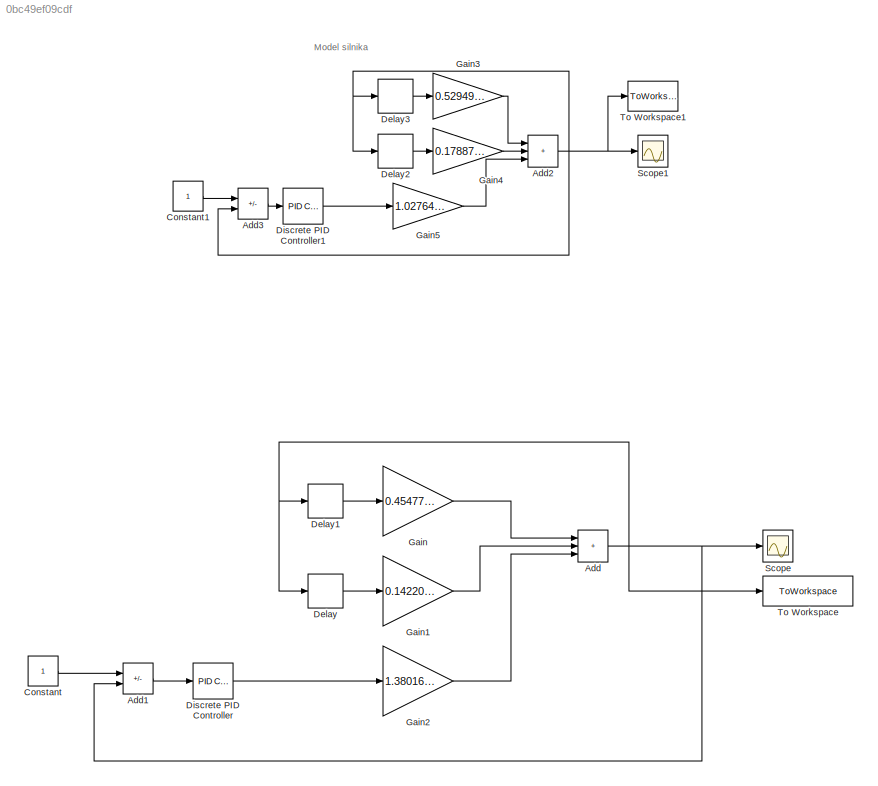
MODEL slx_0bc49ef09cdf
KIND model
CONFIG AbsTol = auto
CONFIG EnableMultiTasking = off
CONFIG FixedStep = auto
CONFIG MaxStep = auto
CONFIG MinStep = auto
CONFIG RelTol = 1e-3
CONFIG SampleTimeConstraint = Unconstrained
CONFIG SolverName = VariableStepAuto
CONFIG StartTime = 0.0
CONFIG StopTime = 0.5
BLOCK [Sum] Add
  IconShape = rectangular
  Inputs = +++
  Ports = [3, 1]
BLOCK [Sum] Add1
  IconShape = rectangular
  Inputs = +-
  Ports = [2, 1]
BLOCK [Sum] Add2
  IconShape = rectangular
  Inputs = +++
  Ports = [3, 1]
BLOCK [Sum] Add3
  IconShape = rectangular
  Inputs = +-
  Ports = [2, 1]
BLOCK [Constant] Constant
BLOCK [Constant] Constant1
BLOCK [Delay] Delay
  InputPortMap = u0
  Ports = [1, 1]
  SampleTime = 0.009999999776482582
BLOCK [Delay] Delay1
  DelayLength = 1
  InputPortMap = u0
  Ports = [1, 1]
  SampleTime = 0.009999999776482582
BLOCK [Delay] Delay2
  InputPortMap = u0
  Ports = [1, 1]
  SampleTime = 0.009999999776482582
BLOCK [Delay] Delay3
  DelayLength = 1
  InputPortMap = u0
  Ports = [1, 1]
  SampleTime = 0.009999999776482582
BLOCK [Reference] Discrete PID Controller  REF=pid_lib/PID Controller
  Ports = [1, 1]
  SourceBlock = pid_lib/PID Controller
  SourceProductBaseCode = SL
  SourceType = PID 1dof
BLOCK [Reference] Discrete PID Controller1  REF=pid_lib/PID Controller
  Ports = [1, 1]
  SourceBlock = pid_lib/PID Controller
  SourceProductBaseCode = SL
  SourceType = PID 1dof
BLOCK [Gain] Gain
  Gain = 0.45477757
BLOCK [Gain] Gain1
  Gain = 0.14220686
BLOCK [Gain] Gain2
  Gain = 1.38016332
BLOCK [Gain] Gain3
  Gain = 0.5294947
BLOCK [Gain] Gain4
  Gain = 0.1788721
BLOCK [Gain] Gain5
  Gain = 1.02764308
BLOCK [Scope] Scope
  Floating = off
  NumInputPorts = 1
  Ports = [1]
  ScopeSpecificationString = Simulink.scopes.TimeScopeBlockCfg('CurrentConfiguration', extmgr.ConfigurationSet(extmgr.Configuration('Core','General UI',true),extmgr.Configuration('Core','Source UI',true),extmgr.Configuration('Sources','WiredSimulink',true),extmgr.Configuration('Visuals','Time Domain',true,'SerializedDisplays',{struct('MinYLimReal','0.2058','MaxYLimReal','1.08823','YLabelReal','','MinYLimMag','0.2058','MaxYLim...<+1346ch>
BLOCK [Scope] Scope1
  Floating = off
  NumInputPorts = 1
  Ports = [1]
  ScopeSpecificationString = Simulink.scopes.TimeScopeBlockCfg('CurrentConfiguration', extmgr.ConfigurationSet(extmgr.Configuration('Core','General UI',true),extmgr.Configuration('Core','Source UI',true),extmgr.Configuration('Sources','WiredSimulink',true,'DataLoggingVariableName','ScopeData1'),extmgr.Configuration('Visuals','Time Domain',true,'SerializedDisplays',{struct('MinYLimReal','0.2058','MaxYLimReal','1.08823','YLabel...<+1385ch>
BLOCK [ToWorkspace] To Workspace
  FixptAsFi = on
  MaxDataPoints = inf
  Ports = [1]
  SampleTime = 0.009999999776482582
  SaveFormat = Timeseries
  VariableName = right
BLOCK [ToWorkspace] To Workspace1
  FixptAsFi = on
  MaxDataPoints = inf
  Ports = [1]
  SampleTime = 0.009999999776482582
  SaveFormat = Timeseries
  VariableName = left
ANNOTATION (root): Model silnika
LINE Add1:1 -> Discrete PID Controller:1
NET Add2:1 -> Add3:2, Delay2:1, Delay3:1, Scope1:1, To Workspace1:1
LINE Add3:1 -> Discrete PID Controller1:1
NET Add:1 -> Add1:2, Delay1:1, Delay:1, Scope:1, To Workspace:1
LINE Constant1:1 -> Add3:1
LINE Constant:1 -> Add1:1
LINE Delay1:1 -> Gain:1
LINE Delay2:1 -> Gain4:1
LINE Delay3:1 -> Gain3:1
LINE Delay:1 -> Gain1:1
LINE Discrete PID Controller1:1 -> Gain5:1
LINE Discrete PID Controller:1 -> Gain2:1
LINE Gain1:1 -> Add:2
LINE Gain2:1 -> Add:3
LINE Gain3:1 -> Add2:1
LINE Gain4:1 -> Add2:2
LINE Gain5:1 -> Add2:3
LINE Gain:1 -> Add:1
note: NET lines group one-source signal fan-out (src -> all destinations, sorted); 1:1 wires keep LINE
